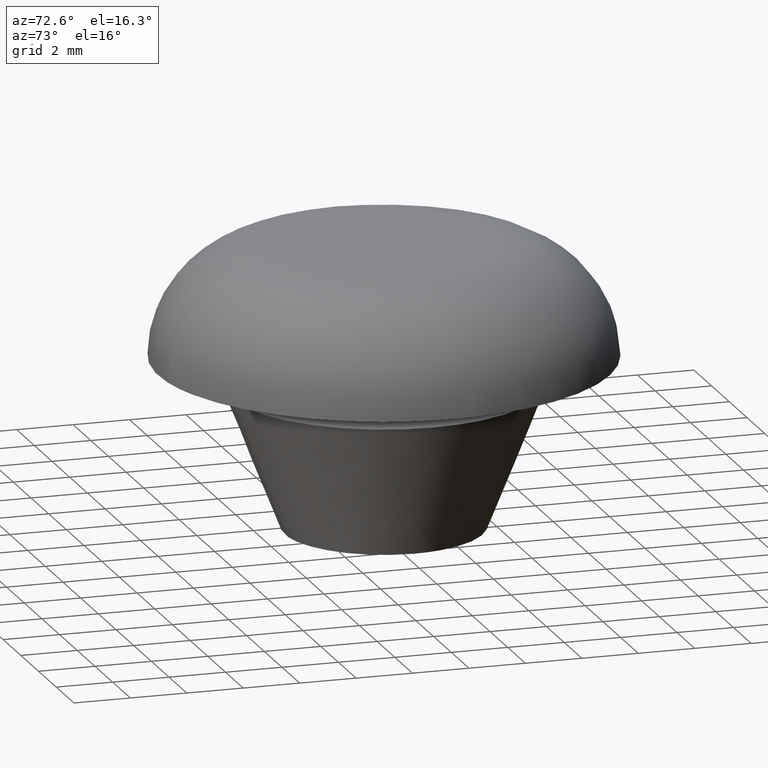
[diagram: clean part render]
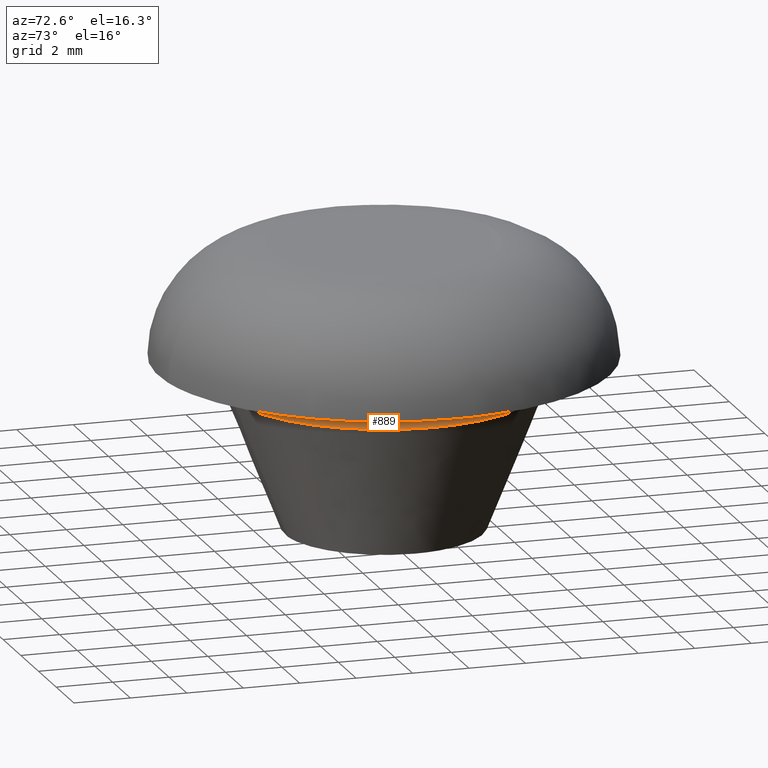
[diagram: same view with one face highlighted and labeled with its STEP entity id]
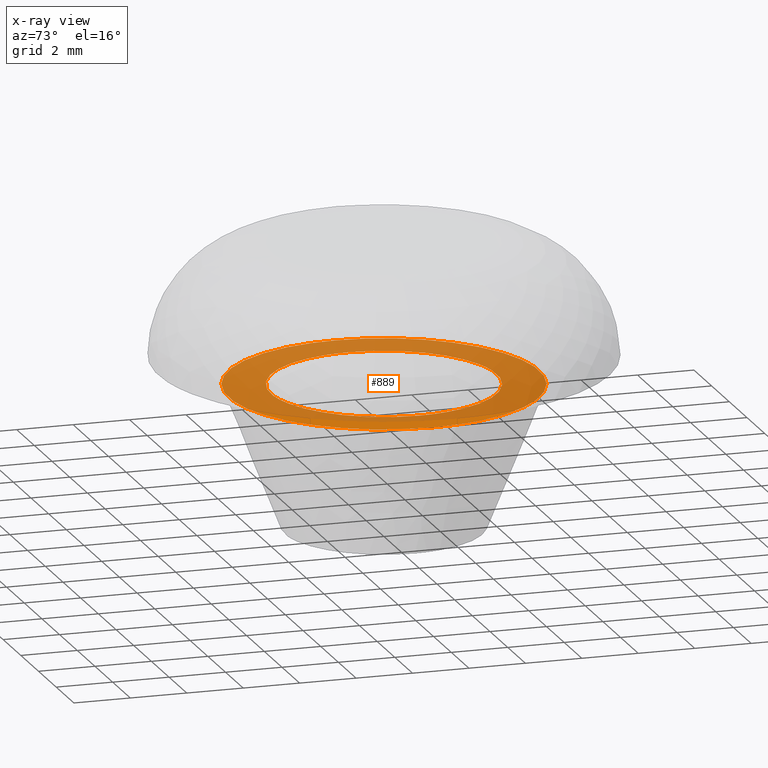
[diagram: x-ray of the same camera — body ghosted, the highlighted face saturated]
A machine part, auxiliary view. The second image highlights one B-rep face of the part: STEP entity #889.
The next image is the same camera in x-ray: the body ghosted, the highlighted face saturated — about 87% of this face is hidden behind the body in this view.
In plain terms, the highlighted face is a freeform B-spline surface patch.
Its self-contained STEP definition (entity closure, byte-faithful):
#286=CARTESIAN_POINT('',(0.244191539836600,-3.992539353828005,5.0));
#287=VERTEX_POINT('',#286);
#293=CARTESIAN_POINT('',(4.0,0.0,5.0));
#294=VERTEX_POINT('',#293);
#295=CARTESIAN_POINT('',(4.0,0.0,5.0));
#296=CARTESIAN_POINT('',(4.0,-3.762826739890751,5.000000000000001));
#297=CARTESIAN_POINT('',(0.244191539836600,-3.992539353828005,5.0));
#305=(BOUNDED_CURVE()B_SPLINE_CURVE(2,(#295,#296,#297),.UNSPECIFIED.,.F.,.U.)B_SPLINE_CURVE_WITH_KNOTS((3,3),(0.500000000000000,0.739333075397974),.UNSPECIFIED.)CURVE()GEOMETRIC_REPRESENTATION_ITEM()RATIONAL_B_SPLINE_CURVE((1.0,0.719603860712659,0.976072284188181))REPRESENTATION_ITEM(''));
#306=EDGE_CURVE('',#294,#287,#305,.T.);
#308=CARTESIAN_POINT('',(-0.472135296181069,3.972038300683576,5.0));
#309=VERTEX_POINT('',#308);
#310=CARTESIAN_POINT('',(-0.472135296181069,3.972038300683576,5.0));
#311=CARTESIAN_POINT('',(-0.236895648702844,4.000000000000001,5.0));
#312=CARTESIAN_POINT('',(0.0,4.0,5.0));
#313=CARTESIAN_POINT('',(4.000000000000000,4.000000000000000,5.000000000000001));
#314=CARTESIAN_POINT('',(4.0,0.0,5.0));
#322=(BOUNDED_CURVE()B_SPLINE_CURVE(2,(#310,#311,#312,#313,#314),.UNSPECIFIED.,.F.,.U.)B_SPLINE_CURVE_WITH_KNOTS((3,2,3),(0.229562543398839,0.250000000000000,0.500000000000000),.UNSPECIFIED.)CURVE()GEOMETRIC_REPRESENTATION_ITEM()RATIONAL_B_SPLINE_CURVE((0.956026891161853,0.976056030206903,1.0,0.707106781186548,1.0))REPRESENTATION_ITEM(''));
#323=EDGE_CURVE('',#309,#294,#322,.T.);
#367=CARTESIAN_POINT('',(-4.0,0.0,5.0));
#368=VERTEX_POINT('',#367);
#369=CARTESIAN_POINT('',(-4.0,0.0,5.0));
#370=CARTESIAN_POINT('',(-4.000000000000001,3.552699583195312,5.0));
#371=CARTESIAN_POINT('',(-0.472135296181069,3.972038300683576,5.0));
#379=(BOUNDED_CURVE()B_SPLINE_CURVE(2,(#369,#370,#371),.UNSPECIFIED.,.F.,.U.)B_SPLINE_CURVE_WITH_KNOTS((3,3),(0.0,0.229562543398839),.UNSPECIFIED.)CURVE()GEOMETRIC_REPRESENTATION_ITEM()RATIONAL_B_SPLINE_CURVE((1.0,0.731050750979645,0.956026891161853))REPRESENTATION_ITEM(''));
#380=EDGE_CURVE('',#368,#309,#379,.T.);
#382=CARTESIAN_POINT('',(0.244191539836600,-3.992539353828005,5.0));
#383=CARTESIAN_POINT('',(0.122209740372274,-4.000000000000000,4.999999999999999));
#384=CARTESIAN_POINT('',(0.0,-4.0,5.0));
#385=CARTESIAN_POINT('',(-4.000000000000000,-4.000000000000000,5.000000000000001));
#386=CARTESIAN_POINT('',(-4.0,0.0,5.0));
#394=(BOUNDED_CURVE()B_SPLINE_CURVE(2,(#382,#383,#384,#385,#386),.UNSPECIFIED.,.F.,.U.)B_SPLINE_CURVE_WITH_KNOTS((3,2,3),(0.739333075397974,0.750000000000000,1.0),.UNSPECIFIED.)CURVE()GEOMETRIC_REPRESENTATION_ITEM()RATIONAL_B_SPLINE_CURVE((0.976072284188181,0.987502920473888,1.0,0.707106781186548,1.0))REPRESENTATION_ITEM(''));
#395=EDGE_CURVE('',#287,#368,#394,.T.);
#472=CARTESIAN_POINT('',(0.431523188758528,-5.483044809921816,4.999998329556744));
#473=VERTEX_POINT('',#472);
#479=CARTESIAN_POINT('',(-5.500000000000000,0.0,5.0));
#480=VERTEX_POINT('',#479);
#481=CARTESIAN_POINT('',(0.431523188758528,-5.483044809921816,4.999998329556744));
#482=CARTESIAN_POINT('',(0.216094640267148,-5.499999345978611,4.999998359891379));
#483=CARTESIAN_POINT('',(-0.000000050442510,-5.499999359064478,4.999998392707190));
#484=CARTESIAN_POINT('',(-5.500000024230313,-5.499999692123399,4.999999227928817));
#485=CARTESIAN_POINT('',(-5.500000000000000,0.0,5.0));
#493=(BOUNDED_CURVE()B_SPLINE_CURVE(2,(#481,#482,#483,#484,#485),.UNSPECIFIED.,.F.,.U.)B_SPLINE_CURVE_WITH_KNOTS((3,2,3),(0.736331356449855,0.750000000000000,1.0),.UNSPECIFIED.)CURVE()GEOMETRIC_REPRESENTATION_ITEM()RATIONAL_B_SPLINE_CURVE((0.969723472657849,0.983986187975137,1.0,0.707106781186548,1.0))REPRESENTATION_ITEM(''));
#494=EDGE_CURVE('',#473,#480,#493,.T.);
#496=CARTESIAN_POINT('',(-0.431523188758529,5.483044809921818,4.999998329556744));
#497=VERTEX_POINT('',#496);
#498=CARTESIAN_POINT('',(-5.500000000000000,0.0,5.0));
#499=CARTESIAN_POINT('',(-5.499999973787804,5.084149031616583,4.999999164778371));
#500=CARTESIAN_POINT('',(-0.431523188758529,5.483044809921819,4.999998329556744));
#508=(BOUNDED_CURVE()B_SPLINE_CURVE(2,(#498,#499,#500),.UNSPECIFIED.,.F.,.U.)B_SPLINE_CURVE_WITH_KNOTS((3,3),(0.0,0.236331356449855),.UNSPECIFIED.)CURVE()GEOMETRIC_REPRESENTATION_ITEM()RATIONAL_B_SPLINE_CURVE((1.0,0.723120593211411,0.969723472657849))REPRESENTATION_ITEM(''));
#509=EDGE_CURVE('',#480,#497,#508,.T.);
#559=CARTESIAN_POINT('',(5.500000000000000,0.0,5.0));
#560=VERTEX_POINT('',#559);
#561=CARTESIAN_POINT('',(-0.431523188758529,5.483044809921819,4.999998329556744));
#562=CARTESIAN_POINT('',(-0.216094640267148,5.499999345978612,4.999998359891378));
#563=CARTESIAN_POINT('',(0.000000050442510,5.499999359064479,4.999998392707188));
#564=CARTESIAN_POINT('',(5.500000024230313,5.499999692123400,4.999999227928816));
#565=CARTESIAN_POINT('',(5.500000000000000,0.0,5.0));
#573=(BOUNDED_CURVE()B_SPLINE_CURVE(2,(#561,#562,#563,#564,#565),.UNSPECIFIED.,.F.,.U.)B_SPLINE_CURVE_WITH_KNOTS((3,2,3),(0.236331356449855,0.250000000000000,0.500000000000000),.UNSPECIFIED.)CURVE()GEOMETRIC_REPRESENTATION_ITEM()RATIONAL_B_SPLINE_CURVE((0.969723472657849,0.983986187975137,1.0,0.707106781186548,1.0))REPRESENTATION_ITEM(''));
#574=EDGE_CURVE('',#497,#560,#573,.T.);
#576=CARTESIAN_POINT('',(5.500000000000000,0.0,5.0));
#577=CARTESIAN_POINT('',(5.499999973787802,-5.084149031616582,4.999999164778372));
#578=CARTESIAN_POINT('',(0.431523188758528,-5.483044809921816,4.999998329556744));
#586=(BOUNDED_CURVE()B_SPLINE_CURVE(2,(#576,#577,#578),.UNSPECIFIED.,.F.,.U.)B_SPLINE_CURVE_WITH_KNOTS((3,3),(0.500000000000000,0.736331356449855),.UNSPECIFIED.)CURVE()GEOMETRIC_REPRESENTATION_ITEM()RATIONAL_B_SPLINE_CURVE((1.0,0.723120593211411,0.969723472657849))REPRESENTATION_ITEM(''));
#587=EDGE_CURVE('',#560,#473,#586,.T.);
#872=CARTESIAN_POINT('',(-6.049449978679865,-6.047770584397313,5.0));
#873=CARTESIAN_POINT('',(6.049450273722857,-6.047770584397313,5.0));
#874=CARTESIAN_POINT('',(-6.049449978679865,6.047770584397312,5.0));
#875=CARTESIAN_POINT('',(6.049450273722857,6.047770584397312,5.0));
#876=B_SPLINE_SURFACE_WITH_KNOTS('',1,1,((#872,#874),(#873,#875)),.UNSPECIFIED.,.F.,.F.,.U.,(2,2),(2,2),(0.0,12.098900252402720),(0.0,12.095541168794631),.UNSPECIFIED.);
#877=ORIENTED_EDGE('',*,*,#494,.F.);
#878=ORIENTED_EDGE('',*,*,#587,.F.);
#879=ORIENTED_EDGE('',*,*,#574,.F.);
#880=ORIENTED_EDGE('',*,*,#509,.F.);
#881=EDGE_LOOP('',(#877,#878,#879,#880));
#882=FACE_OUTER_BOUND('',#881,.T.);
#883=ORIENTED_EDGE('',*,*,#306,.T.);
#884=ORIENTED_EDGE('',*,*,#395,.T.);
#885=ORIENTED_EDGE('',*,*,#380,.T.);
#886=ORIENTED_EDGE('',*,*,#323,.T.);
#887=EDGE_LOOP('',(#883,#884,#885,#886));
#888=FACE_BOUND('',#887,.T.);
#889=ADVANCED_FACE('',(#882,#888),#876,.T.);